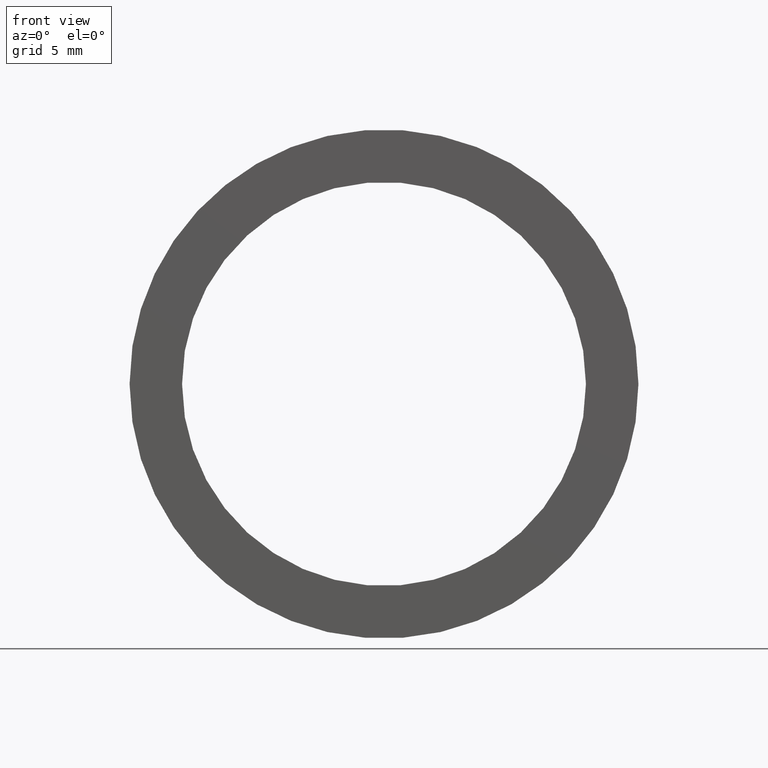
[diagram: clean part render]
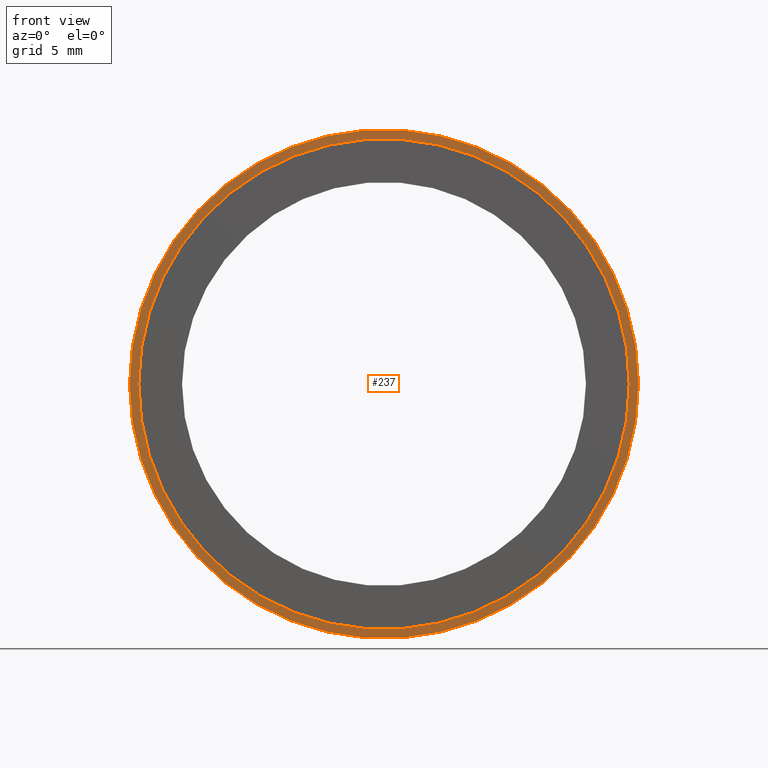
[diagram: same view with one face highlighted and labeled with its STEP entity id]
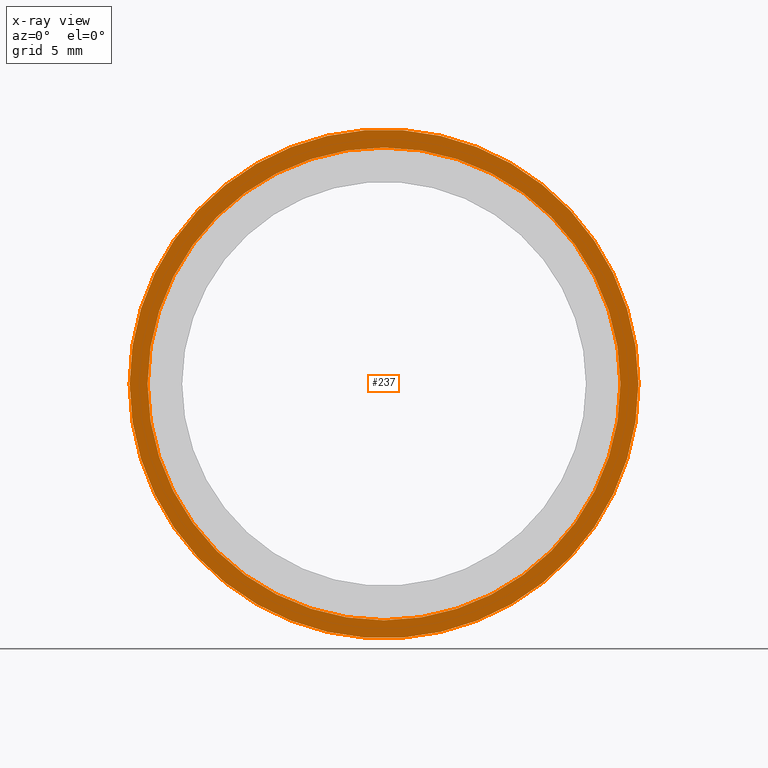
[diagram: x-ray of the same camera — body ghosted, the highlighted face saturated]
A machine part, front view. The second image highlights one B-rep face of the part: STEP entity #237.
The next image is the same camera in x-ray: the body ghosted, the highlighted face saturated — about 0% of this face is hidden behind the body in this view.
In plain terms, the highlighted planar face has unit normal (-0, 1, 0).
Its self-contained STEP definition (entity closure, byte-faithful):
#9 = DIRECTION ( 'NONE',  ( -1.224646799147351000E-016, 1.000000000000000000, -0.0000000000000000000 ) ) ;
#19 = EDGE_CURVE ( 'NONE', #242, #161, #249, .T. ) ;
#24 = ORIENTED_EDGE ( 'NONE', *, *, #118, .F. ) ;
#35 = CARTESIAN_POINT ( 'NONE',  ( -14.74999999999999600, 2.954535588880331100, 0.0000000000000000000 ) ) ;
#36 = ORIENTED_EDGE ( 'NONE', *, *, #90, .T. ) ;
#56 = EDGE_LOOP ( 'NONE', ( #208, #36 ) ) ;
#61 = DIRECTION ( 'NONE',  ( -1.000000000000000000, -1.176083712526648900E-016, 0.0000000000000000000 ) ) ;
#74 = DIRECTION ( 'NONE',  ( -1.000000000000000000, -1.092739197465705500E-016, 0.0000000000000000000 ) ) ;
#76 = FACE_OUTER_BOUND ( 'NONE', #197, .T. ) ;
#79 = VERTEX_POINT ( 'NONE', #362 ) ;
#87 = CIRCLE ( 'NONE', #140, 15.87499999999999600 ) ;
#90 = EDGE_CURVE ( 'NONE', #161, #242, #222, .T. ) ;
#97 = AXIS2_PLACEMENT_3D ( 'NONE', #275, #336, #183 ) ;
#98 = EDGE_CURVE ( 'NONE', #194, #79, #177, .T. ) ;
#107 = DIRECTION ( 'NONE',  ( -1.224646799147351000E-016, 1.000000000000000000, -0.0000000000000000000 ) ) ;
#111 = DIRECTION ( 'NONE',  ( -1.000000000000000000, -1.092739197465705500E-016, 0.0000000000000000000 ) ) ;
#118 = EDGE_CURVE ( 'NONE', #79, #194, #87, .T. ) ;
#120 = PLANE ( 'NONE',  #97 ) ;
#140 = AXIS2_PLACEMENT_3D ( 'NONE', #368, #148, #74 ) ;
#148 = DIRECTION ( 'NONE',  ( -1.224646799147351000E-016, 1.000000000000000000, -0.0000000000000000000 ) ) ;
#161 = VERTEX_POINT ( 'NONE', #163 ) ;
#163 = CARTESIAN_POINT ( 'NONE',  ( 14.75000000000000000, 2.954535588880334600, 1.806354028742345800E-015 ) ) ;
#177 = CIRCLE ( 'NONE', #319, 15.87499999999999600 ) ;
#183 = DIRECTION ( 'NONE',  ( -1.000000000000000000, -1.224646799147351000E-016, 0.0000000000000000000 ) ) ;
#194 = VERTEX_POINT ( 'NONE', #354 ) ;
#197 = EDGE_LOOP ( 'NONE', ( #24, #406 ) ) ;
#208 = ORIENTED_EDGE ( 'NONE', *, *, #19, .T. ) ;
#209 = CARTESIAN_POINT ( 'NONE',  ( 1.706114563249712500E-015, 2.954535588880332900, 0.0000000000000000000 ) ) ;
#222 = CIRCLE ( 'NONE', #273, 14.74999999999999800 ) ;
#237 = ADVANCED_FACE ( 'NONE', ( #76, #427 ), #120, .F. ) ;
#242 = VERTEX_POINT ( 'NONE', #35 ) ;
#247 = DIRECTION ( 'NONE',  ( -1.224646799147351000E-016, 1.000000000000000000, -0.0000000000000000000 ) ) ;
#249 = CIRCLE ( 'NONE', #409, 14.74999999999999800 ) ;
#273 = AXIS2_PLACEMENT_3D ( 'NONE', #332, #9, #281 ) ;
#275 = CARTESIAN_POINT ( 'NONE',  ( 14.75000000000000000, 2.954535588880335500, 0.0000000000000000000 ) ) ;
#281 = DIRECTION ( 'NONE',  ( -1.000000000000000000, -1.176083712526648900E-016, 0.0000000000000000000 ) ) ;
#319 = AXIS2_PLACEMENT_3D ( 'NONE', #410, #247, #111 ) ;
#332 = CARTESIAN_POINT ( 'NONE',  ( 1.706114563249712500E-015, 2.954535588880332900, 0.0000000000000000000 ) ) ;
#336 = DIRECTION ( 'NONE',  ( -1.224646799147351000E-016, 1.000000000000000000, 0.0000000000000000000 ) ) ;
#354 = CARTESIAN_POINT ( 'NONE',  ( 15.87499999999999600, 2.954535588880334600, 1.944126793646422800E-015 ) ) ;
#362 = CARTESIAN_POINT ( 'NONE',  ( -15.87499999999999600, 2.954535588880331100, 0.0000000000000000000 ) ) ;
#368 = CARTESIAN_POINT ( 'NONE',  ( 1.706114563249712500E-015, 2.954535588880332900, 0.0000000000000000000 ) ) ;
#406 = ORIENTED_EDGE ( 'NONE', *, *, #98, .F. ) ;
#409 = AXIS2_PLACEMENT_3D ( 'NONE', #209, #107, #61 ) ;
#410 = CARTESIAN_POINT ( 'NONE',  ( 1.706114563249712500E-015, 2.954535588880332900, 0.0000000000000000000 ) ) ;
#427 = FACE_BOUND ( 'NONE', #56, .T. ) ;